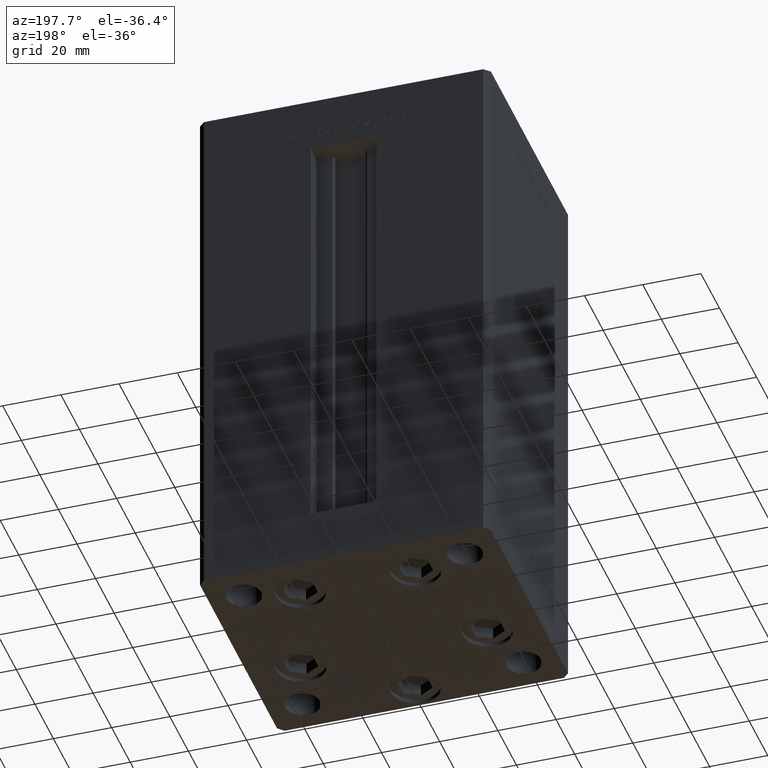
[diagram: clean part render]
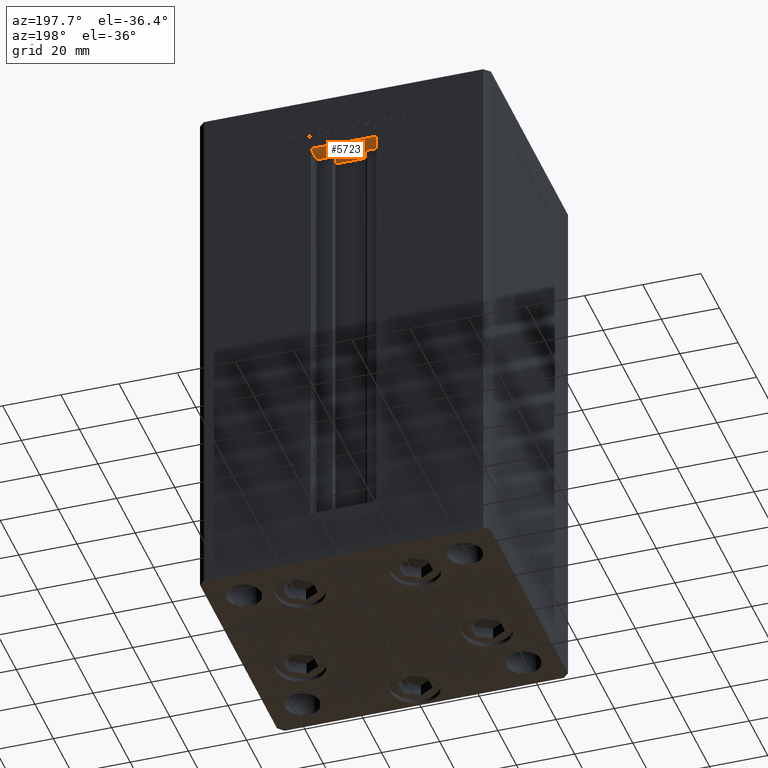
[diagram: same view with one face highlighted and labeled with its STEP entity id]
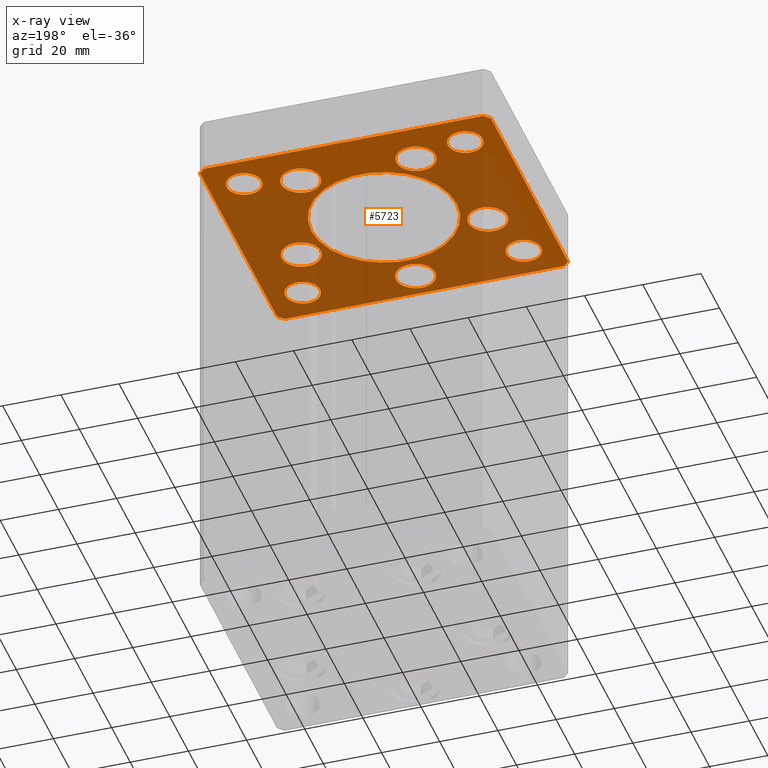
[diagram: x-ray of the same camera — body ghosted, the highlighted face saturated]
A machine part, auxiliary view. The second image highlights one B-rep face of the part: STEP entity #5723.
The next image is the same camera in x-ray: the body ghosted, the highlighted face saturated — about 66% of this face is hidden behind the body in this view.
In plain terms, the highlighted planar face has unit normal (0, 0, 1).
Its self-contained STEP definition (entity closure, byte-faithful):
#78 = DIRECTION ( 'NONE',  ( 1.000000000000000000, 0.000000000000000000, 0.000000000000000000 ) ) ;
#96 = CIRCLE ( 'NONE', #29579, 5.999999999999998224 ) ;
#256 = LINE ( 'NONE', #4733, #33995 ) ;
#383 = VERTEX_POINT ( 'NONE', #15258 ) ;
#844 = CIRCLE ( 'NONE', #36240, 6.749999999999999112 ) ;
#854 = FACE_BOUND ( 'NONE', #10773, .T. ) ;
#1069 = CIRCLE ( 'NONE', #4426, 6.749999999999999112 ) ;
#1677 = VERTEX_POINT ( 'NONE', #2013 ) ;
#2013 = CARTESIAN_POINT ( 'NONE',  ( 50.00000000000000000, 41.50000000000000711, -19.00000000000000000 ) ) ;
#2107 = EDGE_CURVE ( 'NONE', #30662, #2655, #16914, .T. ) ;
#2204 = CIRCLE ( 'NONE', #42636, 6.749999999999999112 ) ;
#2259 = EDGE_CURVE ( 'NONE', #7319, #37023, #19446, .T. ) ;
#2451 = DIRECTION ( 'NONE',  ( 0.000000000000000000, -0.000000000000000000, -1.000000000000000000 ) ) ;
#2591 = EDGE_CURVE ( 'NONE', #24892, #24194, #22020, .T. ) ;
#2606 = ORIENTED_EDGE ( 'NONE', *, *, #2591, .F. ) ;
#2616 = VECTOR ( 'NONE', #46144, 1000.000000000000000 ) ;
#2655 = VERTEX_POINT ( 'NONE', #26310 ) ;
#2840 = EDGE_CURVE ( 'NONE', #28927, #44428, #8334, .T. ) ;
#2984 = CIRCLE ( 'NONE', #28250, 6.749999999999999112 ) ;
#3645 = EDGE_LOOP ( 'NONE', ( #6474, #38647 ) ) ;
#3855 = AXIS2_PLACEMENT_3D ( 'NONE', #40510, #33645, #5426 ) ;
#4064 = DIRECTION ( 'NONE',  ( 0.000000000000000000, 1.000000000000000000, 0.000000000000000000 ) ) ;
#4212 = DIRECTION ( 'NONE',  ( -1.000000000000000000, -2.891205793294678326E-16, 0.000000000000000000 ) ) ;
#4426 = AXIS2_PLACEMENT_3D ( 'NONE', #13266, #2451, #5882 ) ;
#4561 = FACE_BOUND ( 'NONE', #45417, .T. ) ;
#4694 = DIRECTION ( 'NONE',  ( -0.000000000000000000, -0.000000000000000000, -1.000000000000000000 ) ) ;
#4733 = CARTESIAN_POINT ( 'NONE',  ( 47.99999999999999289, 43.50000000000000000, -19.00000000000000000 ) ) ;
#4824 = CARTESIAN_POINT ( 'NONE',  ( -13.07068048781375325, 27.62499999999998934, -19.00000000000000000 ) ) ;
#4992 = CARTESIAN_POINT ( 'NONE',  ( 47.99999999999999289, 43.50000000000000000, -19.00000000000000000 ) ) ;
#5426 = DIRECTION ( 'NONE',  ( 1.000000000000000000, 0.000000000000000000, 0.000000000000000000 ) ) ;
#5463 = CARTESIAN_POINT ( 'NONE',  ( 50.00000000000000000, -41.49999999999992895, -19.00000000000000000 ) ) ;
#5528 = LINE ( 'NONE', #41660, #2616 ) ;
#5723 = ADVANCED_FACE ( 'NONE', ( #25374, #48613, #28561, #21415, #37003, #24602, #4561, #36753, #24864, #40951, #854 ), #45169, .F. ) ;
#5856 = CARTESIAN_POINT ( 'NONE',  ( 25.00000000000000000, 0.000000000000000000, -19.00000000000000000 ) ) ;
#5882 = DIRECTION ( 'NONE',  ( 1.000000000000000000, 0.000000000000000000, 0.000000000000000000 ) ) ;
#6474 = ORIENTED_EDGE ( 'NONE', *, *, #39258, .F. ) ;
#6805 = AXIS2_PLACEMENT_3D ( 'NONE', #46961, #10822, #47743 ) ;
#7158 = CARTESIAN_POINT ( 'NONE',  ( -32.05550741379015989, -11.33333333333332860, -19.00000000000000000 ) ) ;
#7275 = EDGE_CURVE ( 'NONE', #25961, #27862, #96, .T. ) ;
#7319 = VERTEX_POINT ( 'NONE', #50269 ) ;
#7717 = ORIENTED_EDGE ( 'NONE', *, *, #13828, .F. ) ;
#7921 = CARTESIAN_POINT ( 'NONE',  ( 44.00000000000000000, 31.50000000000000000, -19.00000000000000000 ) ) ;
#8077 = DIRECTION ( 'NONE',  ( 0.7071067811865487940, -0.7071067811865463515, 0.000000000000000000 ) ) ;
#8334 = LINE ( 'NONE', #44213, #40541 ) ;
#8449 = DIRECTION ( 'NONE',  ( 0.000000000000000000, 0.000000000000000000, 1.000000000000000000 ) ) ;
#8545 = ORIENTED_EDGE ( 'NONE', *, *, #44936, .F. ) ;
#9023 = CARTESIAN_POINT ( 'NONE',  ( 0.000000000000000000, 0.000000000000000000, -19.00000000000000000 ) ) ;
#9340 = ORIENTED_EDGE ( 'NONE', *, *, #14526, .F. ) ;
#9848 = ORIENTED_EDGE ( 'NONE', *, *, #2107, .F. ) ;
#10169 = CARTESIAN_POINT ( 'NONE',  ( -48.00000000000000000, 43.49999999999997158, -19.00000000000000000 ) ) ;
#10211 = AXIS2_PLACEMENT_3D ( 'NONE', #16960, #52088, #12245 ) ;
#10447 = VECTOR ( 'NONE', #33289, 1000.000000000000114 ) ;
#10448 = EDGE_CURVE ( 'NONE', #1677, #13840, #50700, .T. ) ;
#10622 = VERTEX_POINT ( 'NONE', #33246 ) ;
#10683 = DIRECTION ( 'NONE',  ( 0.000000000000000000, -0.000000000000000000, -1.000000000000000000 ) ) ;
#10773 = EDGE_LOOP ( 'NONE', ( #11648, #2606 ) ) ;
#10822 = DIRECTION ( 'NONE',  ( 0.000000000000000000, -0.000000000000000000, -1.000000000000000000 ) ) ;
#10961 = EDGE_LOOP ( 'NONE', ( #33543, #50259 ) ) ;
#11169 = ORIENTED_EDGE ( 'NONE', *, *, #39381, .F. ) ;
#11228 = AXIS2_PLACEMENT_3D ( 'NONE', #14000, #50663, #25350 ) ;
#11281 = CARTESIAN_POINT ( 'NONE',  ( -44.00000000000000000, 31.50000000000000000, -19.00000000000000000 ) ) ;
#11332 = EDGE_CURVE ( 'NONE', #10622, #21359, #1069, .T. ) ;
#11648 = ORIENTED_EDGE ( 'NONE', *, *, #23475, .F. ) ;
#11717 = ORIENTED_EDGE ( 'NONE', *, *, #2259, .T. ) ;
#11728 = CARTESIAN_POINT ( 'NONE',  ( 0.000000000000000000, -34.00000000000000000, -19.00000000000000000 ) ) ;
#11749 = CARTESIAN_POINT ( 'NONE',  ( -19.82068048781374969, 27.62499999999998934, -19.00000000000000000 ) ) ;
#11928 = DIRECTION ( 'NONE',  ( 1.000000000000000000, 0.000000000000000000, 0.000000000000000000 ) ) ;
#12087 = CIRCLE ( 'NONE', #41541, 6.749999999999999112 ) ;
#12103 = CARTESIAN_POINT ( 'NONE',  ( -50.00000000000000711, 41.49999999999999289, -19.00000000000000000 ) ) ;
#12149 = DIRECTION ( 'NONE',  ( 1.000000000000000000, 0.000000000000000000, 0.000000000000000000 ) ) ;
#12245 = DIRECTION ( 'NONE',  ( -1.000000000000000000, 0.000000000000000000, 0.000000000000000000 ) ) ;
#12707 = ORIENTED_EDGE ( 'NONE', *, *, #42613, .F. ) ;
#12817 = DIRECTION ( 'NONE',  ( 1.000000000000000000, 0.000000000000000000, 0.000000000000000000 ) ) ;
#12962 = EDGE_LOOP ( 'NONE', ( #9848, #49420 ) ) ;
#12988 = EDGE_LOOP ( 'NONE', ( #31536, #45056 ) ) ;
#13194 = DIRECTION ( 'NONE',  ( 1.000000000000000000, 0.000000000000000000, 0.000000000000000000 ) ) ;
#13266 = CARTESIAN_POINT ( 'NONE',  ( 32.05550741379015989, -11.33333333333332860, -19.00000000000000000 ) ) ;
#13433 = CARTESIAN_POINT ( 'NONE',  ( -6.749999999999999112, -34.00000000000000000, -19.00000000000000000 ) ) ;
#13694 = EDGE_CURVE ( 'NONE', #49366, #36273, #21350, .T. ) ;
#13828 = EDGE_CURVE ( 'NONE', #13840, #30365, #256, .T. ) ;
#13840 = VERTEX_POINT ( 'NONE', #4992 ) ;
#13898 = AXIS2_PLACEMENT_3D ( 'NONE', #22345, #50049, #41601 ) ;
#14000 = CARTESIAN_POINT ( 'NONE',  ( 19.82068048781374969, 27.62499999999998934, -19.00000000000000000 ) ) ;
#14049 = EDGE_LOOP ( 'NONE', ( #43085, #11169, #35423, #7717, #50791, #38819, #26010, #14220 ) ) ;
#14220 = ORIENTED_EDGE ( 'NONE', *, *, #20640, .F. ) ;
#14471 = CARTESIAN_POINT ( 'NONE',  ( 32.00000000000000000, -31.50000000000000711, -19.00000000000000000 ) ) ;
#14526 = EDGE_CURVE ( 'NONE', #42193, #17980, #30616, .T. ) ;
#14739 = AXIS2_PLACEMENT_3D ( 'NONE', #32213, #24043, #20601 ) ;
#15258 = CARTESIAN_POINT ( 'NONE',  ( -26.57068048781375325, 27.62499999999998934, -19.00000000000000000 ) ) ;
#15397 = CARTESIAN_POINT ( 'NONE',  ( -32.00000000000000000, 31.50000000000000000, -19.00000000000000000 ) ) ;
#15525 = LINE ( 'NONE', #12103, #47606 ) ;
#15635 = ORIENTED_EDGE ( 'NONE', *, *, #46026, .F. ) ;
#15908 = EDGE_CURVE ( 'NONE', #17264, #28259, #16403, .T. ) ;
#15956 = DIRECTION ( 'NONE',  ( 1.000000000000000000, 0.000000000000000000, 0.000000000000000000 ) ) ;
#16403 = LINE ( 'NONE', #20629, #10447 ) ;
#16914 = CIRCLE ( 'NONE', #6805, 6.749999999999999112 ) ;
#16960 = CARTESIAN_POINT ( 'NONE',  ( -38.00000000000000000, 31.50000000000000000, -19.00000000000000000 ) ) ;
#17125 = AXIS2_PLACEMENT_3D ( 'NONE', #43074, #47547, #11928 ) ;
#17133 = ORIENTED_EDGE ( 'NONE', *, *, #21414, .T. ) ;
#17264 = VERTEX_POINT ( 'NONE', #21277 ) ;
#17283 = DIRECTION ( 'NONE',  ( 0.000000000000000000, 0.000000000000000000, 1.000000000000000000 ) ) ;
#17782 = CARTESIAN_POINT ( 'NONE',  ( 6.749999999999999112, -34.00000000000000000, -19.00000000000000000 ) ) ;
#17786 = EDGE_CURVE ( 'NONE', #30365, #30031, #19599, .T. ) ;
#17980 = VERTEX_POINT ( 'NONE', #5856 ) ;
#18373 = CARTESIAN_POINT ( 'NONE',  ( 38.80550741379015989, -11.33333333333332860, -19.00000000000000000 ) ) ;
#18909 = DIRECTION ( 'NONE',  ( -0.000000000000000000, -0.000000000000000000, -1.000000000000000000 ) ) ;
#18917 = CARTESIAN_POINT ( 'NONE',  ( -50.00000000000000711, 41.49999999999999289, -19.00000000000000000 ) ) ;
#19446 = CIRCLE ( 'NONE', #48943, 6.000000000000005329 ) ;
#19599 = LINE ( 'NONE', #35701, #22325 ) ;
#19998 = DIRECTION ( 'NONE',  ( -1.000000000000000000, 0.000000000000000000, 0.000000000000000000 ) ) ;
#20259 = CIRCLE ( 'NONE', #23649, 6.749999999999999112 ) ;
#20316 = CARTESIAN_POINT ( 'NONE',  ( -38.00000000000000711, -31.50000000000000711, -19.00000000000000000 ) ) ;
#20601 = DIRECTION ( 'NONE',  ( -1.000000000000000000, 0.000000000000000000, 0.000000000000000000 ) ) ;
#20629 = CARTESIAN_POINT ( 'NONE',  ( 48.00000000000000711, -43.49999999999992184, -19.00000000000000000 ) ) ;
#20640 = EDGE_CURVE ( 'NONE', #44428, #17264, #5528, .T. ) ;
#21249 = CARTESIAN_POINT ( 'NONE',  ( 38.00000000000000000, 31.50000000000000000, -19.00000000000000000 ) ) ;
#21277 = CARTESIAN_POINT ( 'NONE',  ( 48.00000000000000711, -43.49999999999992184, -19.00000000000000000 ) ) ;
#21350 = CIRCLE ( 'NONE', #11228, 6.749999999999999112 ) ;
#21359 = VERTEX_POINT ( 'NONE', #18373 ) ;
#21414 = EDGE_CURVE ( 'NONE', #37023, #7319, #49764, .T. ) ;
#21415 = FACE_BOUND ( 'NONE', #31620, .T. ) ;
#21959 = CARTESIAN_POINT ( 'NONE',  ( 50.00000000000000000, 41.50000000000000711, -19.00000000000000000 ) ) ;
#21972 = AXIS2_PLACEMENT_3D ( 'NONE', #51078, #31010, #47107 ) ;
#22006 = CIRCLE ( 'NONE', #10211, 5.999999999999998224 ) ;
#22020 = CIRCLE ( 'NONE', #49813, 6.000000000000005329 ) ;
#22314 = CIRCLE ( 'NONE', #40823, 6.749999999999999112 ) ;
#22325 = VECTOR ( 'NONE', #51798, 1000.000000000000000 ) ;
#22345 = CARTESIAN_POINT ( 'NONE',  ( -19.82068048781374969, 27.62499999999998934, -19.00000000000000000 ) ) ;
#22380 = CIRCLE ( 'NONE', #3855, 25.00000000000000000 ) ;
#22570 = DIRECTION ( 'NONE',  ( 1.000000000000000000, 0.000000000000000000, 0.000000000000000000 ) ) ;
#23166 = CIRCLE ( 'NONE', #34137, 5.999999999999998224 ) ;
#23475 = EDGE_CURVE ( 'NONE', #24194, #24892, #35398, .T. ) ;
#23556 = EDGE_LOOP ( 'NONE', ( #49936, #12707 ) ) ;
#23649 = AXIS2_PLACEMENT_3D ( 'NONE', #7158, #32196, #12149 ) ;
#24043 = DIRECTION ( 'NONE',  ( -0.000000000000000000, -0.000000000000000000, -1.000000000000000000 ) ) ;
#24138 = EDGE_CURVE ( 'NONE', #383, #51552, #844, .T. ) ;
#24194 = VERTEX_POINT ( 'NONE', #24935 ) ;
#24251 = CARTESIAN_POINT ( 'NONE',  ( -25.30550741379015989, -11.33333333333332860, -19.00000000000000000 ) ) ;
#24602 = FACE_BOUND ( 'NONE', #3645, .T. ) ;
#24737 = CARTESIAN_POINT ( 'NONE',  ( 38.00000000000000711, -31.50000000000000711, -19.00000000000000000 ) ) ;
#24755 = EDGE_CURVE ( 'NONE', #2655, #30662, #20259, .T. ) ;
#24864 = FACE_OUTER_BOUND ( 'NONE', #14049, .T. ) ;
#24892 = VERTEX_POINT ( 'NONE', #14471 ) ;
#24935 = CARTESIAN_POINT ( 'NONE',  ( 44.00000000000001421, -31.50000000000000711, -19.00000000000000000 ) ) ;
#25119 = DIRECTION ( 'NONE',  ( -0.000000000000000000, 0.000000000000000000, 1.000000000000000000 ) ) ;
#25139 = CARTESIAN_POINT ( 'NONE',  ( 50.00000000000000000, -41.49999999999992895, -19.00000000000000000 ) ) ;
#25327 = DIRECTION ( 'NONE',  ( 0.000000000000000000, -0.000000000000000000, -1.000000000000000000 ) ) ;
#25350 = DIRECTION ( 'NONE',  ( 1.000000000000000000, 0.000000000000000000, 0.000000000000000000 ) ) ;
#25374 = FACE_BOUND ( 'NONE', #28415, .T. ) ;
#25961 = VERTEX_POINT ( 'NONE', #45849 ) ;
#26010 = ORIENTED_EDGE ( 'NONE', *, *, #15908, .F. ) ;
#26310 = CARTESIAN_POINT ( 'NONE',  ( -38.80550741379015989, -11.33333333333332860, -19.00000000000000000 ) ) ;
#26429 = EDGE_CURVE ( 'NONE', #33421, #28208, #22006, .T. ) ;
#27862 = VERTEX_POINT ( 'NONE', #7921 ) ;
#28208 = VERTEX_POINT ( 'NONE', #11281 ) ;
#28250 = AXIS2_PLACEMENT_3D ( 'NONE', #33118, #49212, #41556 ) ;
#28259 = VERTEX_POINT ( 'NONE', #5463 ) ;
#28415 = EDGE_LOOP ( 'NONE', ( #8545, #9340 ) ) ;
#28561 = FACE_BOUND ( 'NONE', #12988, .T. ) ;
#28927 = VERTEX_POINT ( 'NONE', #45952 ) ;
#29095 = CARTESIAN_POINT ( 'NONE',  ( -25.00000000000000000, 3.061616997868383043E-15, -19.00000000000000000 ) ) ;
#29579 = AXIS2_PLACEMENT_3D ( 'NONE', #29945, #17283, #41557 ) ;
#29945 = CARTESIAN_POINT ( 'NONE',  ( 38.00000000000000000, 31.50000000000000000, -19.00000000000000000 ) ) ;
#30031 = VERTEX_POINT ( 'NONE', #18917 ) ;
#30365 = VERTEX_POINT ( 'NONE', #10169 ) ;
#30448 = CARTESIAN_POINT ( 'NONE',  ( 26.57068048781374969, 27.62499999999998934, -19.00000000000000000 ) ) ;
#30616 = CIRCLE ( 'NONE', #17125, 25.00000000000000000 ) ;
#30662 = VERTEX_POINT ( 'NONE', #24251 ) ;
#30754 = CIRCLE ( 'NONE', #14739, 5.999999999999998224 ) ;
#31010 = DIRECTION ( 'NONE',  ( 0.000000000000000000, 0.000000000000000000, 1.000000000000000000 ) ) ;
#31289 = CARTESIAN_POINT ( 'NONE',  ( 38.00000000000000711, -31.50000000000000711, -19.00000000000000000 ) ) ;
#31536 = ORIENTED_EDGE ( 'NONE', *, *, #37594, .F. ) ;
#31538 = VECTOR ( 'NONE', #4064, 1000.000000000000000 ) ;
#31620 = EDGE_LOOP ( 'NONE', ( #15635, #49861 ) ) ;
#32114 = VERTEX_POINT ( 'NONE', #13433 ) ;
#32196 = DIRECTION ( 'NONE',  ( 0.000000000000000000, -0.000000000000000000, -1.000000000000000000 ) ) ;
#32213 = CARTESIAN_POINT ( 'NONE',  ( -38.00000000000000000, 31.50000000000000000, -19.00000000000000000 ) ) ;
#33118 = CARTESIAN_POINT ( 'NONE',  ( 19.82068048781374969, 27.62499999999998934, -19.00000000000000000 ) ) ;
#33124 = EDGE_CURVE ( 'NONE', #32114, #34689, #12087, .T. ) ;
#33233 = DIRECTION ( 'NONE',  ( 1.000000000000000000, 0.000000000000000000, 0.000000000000000000 ) ) ;
#33246 = CARTESIAN_POINT ( 'NONE',  ( 25.30550741379015989, -11.33333333333332860, -19.00000000000000000 ) ) ;
#33289 = DIRECTION ( 'NONE',  ( 0.7071067811865474617, 0.7071067811865474617, 0.000000000000000000 ) ) ;
#33421 = VERTEX_POINT ( 'NONE', #15397 ) ;
#33543 = ORIENTED_EDGE ( 'NONE', *, *, #44935, .F. ) ;
#33645 = DIRECTION ( 'NONE',  ( 0.000000000000000000, -0.000000000000000000, -1.000000000000000000 ) ) ;
#33995 = VECTOR ( 'NONE', #4212, 1000.000000000000000 ) ;
#34137 = AXIS2_PLACEMENT_3D ( 'NONE', #21249, #41834, #12817 ) ;
#34187 = CARTESIAN_POINT ( 'NONE',  ( 13.07068048781375147, 27.62499999999998934, -19.00000000000000000 ) ) ;
#34189 = CARTESIAN_POINT ( 'NONE',  ( 32.05550741379015989, -11.33333333333332860, -19.00000000000000000 ) ) ;
#34689 = VERTEX_POINT ( 'NONE', #17782 ) ;
#35398 = CIRCLE ( 'NONE', #38755, 6.000000000000005329 ) ;
#35423 = ORIENTED_EDGE ( 'NONE', *, *, #17786, .F. ) ;
#35701 = CARTESIAN_POINT ( 'NONE',  ( -48.00000000000000000, 43.49999999999997158, -19.00000000000000000 ) ) ;
#35856 = DIRECTION ( 'NONE',  ( 8.360113137237620037E-17, -1.000000000000000000, 0.000000000000000000 ) ) ;
#36240 = AXIS2_PLACEMENT_3D ( 'NONE', #11749, #51868, #15956 ) ;
#36273 = VERTEX_POINT ( 'NONE', #30448 ) ;
#36753 = FACE_BOUND ( 'NONE', #45663, .T. ) ;
#37003 = FACE_BOUND ( 'NONE', #10961, .T. ) ;
#37023 = VERTEX_POINT ( 'NONE', #43846 ) ;
#37261 = ORIENTED_EDGE ( 'NONE', *, *, #7275, .T. ) ;
#37594 = EDGE_CURVE ( 'NONE', #34689, #32114, #22314, .T. ) ;
#38647 = ORIENTED_EDGE ( 'NONE', *, *, #24138, .F. ) ;
#38755 = AXIS2_PLACEMENT_3D ( 'NONE', #31289, #18909, #47393 ) ;
#38819 = ORIENTED_EDGE ( 'NONE', *, *, #42210, .F. ) ;
#38855 = CARTESIAN_POINT ( 'NONE',  ( -48.00000000000000711, -43.50000000000002842, -19.00000000000000000 ) ) ;
#39258 = EDGE_CURVE ( 'NONE', #51552, #383, #42565, .T. ) ;
#39381 = EDGE_CURVE ( 'NONE', #30031, #28927, #15525, .T. ) ;
#40189 = LINE ( 'NONE', #25139, #31538 ) ;
#40510 = CARTESIAN_POINT ( 'NONE',  ( 0.000000000000000000, 0.000000000000000000, -19.00000000000000000 ) ) ;
#40541 = VECTOR ( 'NONE', #8077, 1000.000000000000000 ) ;
#40823 = AXIS2_PLACEMENT_3D ( 'NONE', #11728, #51847, #43139 ) ;
#40951 = FACE_BOUND ( 'NONE', #23556, .T. ) ;
#41541 = AXIS2_PLACEMENT_3D ( 'NONE', #49870, #25327, #13194 ) ;
#41556 = DIRECTION ( 'NONE',  ( 1.000000000000000000, 0.000000000000000000, 0.000000000000000000 ) ) ;
#41557 = DIRECTION ( 'NONE',  ( 1.000000000000000000, 0.000000000000000000, 0.000000000000000000 ) ) ;
#41601 = DIRECTION ( 'NONE',  ( 1.000000000000000000, 0.000000000000000000, 0.000000000000000000 ) ) ;
#41660 = CARTESIAN_POINT ( 'NONE',  ( -48.00000000000000711, -43.50000000000002842, -19.00000000000000000 ) ) ;
#41834 = DIRECTION ( 'NONE',  ( 0.000000000000000000, 0.000000000000000000, 1.000000000000000000 ) ) ;
#42193 = VERTEX_POINT ( 'NONE', #29095 ) ;
#42210 = EDGE_CURVE ( 'NONE', #28259, #1677, #40189, .T. ) ;
#42565 = CIRCLE ( 'NONE', #13898, 6.749999999999999112 ) ;
#42613 = EDGE_CURVE ( 'NONE', #28208, #33421, #30754, .T. ) ;
#42636 = AXIS2_PLACEMENT_3D ( 'NONE', #34189, #10683, #22570 ) ;
#43074 = CARTESIAN_POINT ( 'NONE',  ( 0.000000000000000000, 0.000000000000000000, -19.00000000000000000 ) ) ;
#43085 = ORIENTED_EDGE ( 'NONE', *, *, #2840, .F. ) ;
#43139 = DIRECTION ( 'NONE',  ( 1.000000000000000000, 0.000000000000000000, 0.000000000000000000 ) ) ;
#43172 = ORIENTED_EDGE ( 'NONE', *, *, #43335, .T. ) ;
#43335 = EDGE_CURVE ( 'NONE', #27862, #25961, #23166, .T. ) ;
#43846 = CARTESIAN_POINT ( 'NONE',  ( -44.00000000000001421, -31.50000000000000711, -19.00000000000000000 ) ) ;
#44213 = CARTESIAN_POINT ( 'NONE',  ( -50.00000000000000000, -41.50000000000004263, -19.00000000000000000 ) ) ;
#44428 = VERTEX_POINT ( 'NONE', #38855 ) ;
#44716 = AXIS2_PLACEMENT_3D ( 'NONE', #9023, #25119, #78 ) ;
#44831 = VECTOR ( 'NONE', #50447, 999.9999999999998863 ) ;
#44935 = EDGE_CURVE ( 'NONE', #36273, #49366, #2984, .T. ) ;
#44936 = EDGE_CURVE ( 'NONE', #17980, #42193, #22380, .T. ) ;
#45056 = ORIENTED_EDGE ( 'NONE', *, *, #33124, .F. ) ;
#45169 = PLANE ( 'NONE',  #44716 ) ;
#45417 = EDGE_LOOP ( 'NONE', ( #43172, #37261 ) ) ;
#45663 = EDGE_LOOP ( 'NONE', ( #11717, #17133 ) ) ;
#45849 = CARTESIAN_POINT ( 'NONE',  ( 32.00000000000000000, 31.50000000000000000, -19.00000000000000000 ) ) ;
#45952 = CARTESIAN_POINT ( 'NONE',  ( -50.00000000000000000, -41.50000000000004263, -19.00000000000000000 ) ) ;
#46026 = EDGE_CURVE ( 'NONE', #21359, #10622, #2204, .T. ) ;
#46144 = DIRECTION ( 'NONE',  ( 1.000000000000000000, 1.156482317317871331E-15, 0.000000000000000000 ) ) ;
#46961 = CARTESIAN_POINT ( 'NONE',  ( -32.05550741379015989, -11.33333333333332860, -19.00000000000000000 ) ) ;
#47107 = DIRECTION ( 'NONE',  ( 1.000000000000000000, 0.000000000000000000, 0.000000000000000000 ) ) ;
#47393 = DIRECTION ( 'NONE',  ( -1.000000000000000000, 0.000000000000000000, 0.000000000000000000 ) ) ;
#47547 = DIRECTION ( 'NONE',  ( 0.000000000000000000, -0.000000000000000000, -1.000000000000000000 ) ) ;
#47606 = VECTOR ( 'NONE', #35856, 1000.000000000000000 ) ;
#47743 = DIRECTION ( 'NONE',  ( 1.000000000000000000, 0.000000000000000000, 0.000000000000000000 ) ) ;
#48613 = FACE_BOUND ( 'NONE', #12962, .T. ) ;
#48943 = AXIS2_PLACEMENT_3D ( 'NONE', #20316, #8449, #33233 ) ;
#49212 = DIRECTION ( 'NONE',  ( 0.000000000000000000, -0.000000000000000000, -1.000000000000000000 ) ) ;
#49366 = VERTEX_POINT ( 'NONE', #34187 ) ;
#49420 = ORIENTED_EDGE ( 'NONE', *, *, #24755, .F. ) ;
#49764 = CIRCLE ( 'NONE', #21972, 6.000000000000005329 ) ;
#49813 = AXIS2_PLACEMENT_3D ( 'NONE', #24737, #4694, #19998 ) ;
#49861 = ORIENTED_EDGE ( 'NONE', *, *, #11332, .F. ) ;
#49870 = CARTESIAN_POINT ( 'NONE',  ( 0.000000000000000000, -34.00000000000000000, -19.00000000000000000 ) ) ;
#49936 = ORIENTED_EDGE ( 'NONE', *, *, #26429, .F. ) ;
#50049 = DIRECTION ( 'NONE',  ( 0.000000000000000000, -0.000000000000000000, -1.000000000000000000 ) ) ;
#50259 = ORIENTED_EDGE ( 'NONE', *, *, #13694, .F. ) ;
#50269 = CARTESIAN_POINT ( 'NONE',  ( -32.00000000000000000, -31.50000000000000711, -19.00000000000000000 ) ) ;
#50447 = DIRECTION ( 'NONE',  ( -0.7071067811865512365, 0.7071067811865439090, 0.000000000000000000 ) ) ;
#50663 = DIRECTION ( 'NONE',  ( 0.000000000000000000, -0.000000000000000000, -1.000000000000000000 ) ) ;
#50700 = LINE ( 'NONE', #21959, #44831 ) ;
#50791 = ORIENTED_EDGE ( 'NONE', *, *, #10448, .F. ) ;
#51078 = CARTESIAN_POINT ( 'NONE',  ( -38.00000000000000711, -31.50000000000000711, -19.00000000000000000 ) ) ;
#51552 = VERTEX_POINT ( 'NONE', #4824 ) ;
#51798 = DIRECTION ( 'NONE',  ( -0.7071067811865536790, -0.7071067811865414665, 0.000000000000000000 ) ) ;
#51847 = DIRECTION ( 'NONE',  ( 0.000000000000000000, -0.000000000000000000, -1.000000000000000000 ) ) ;
#51868 = DIRECTION ( 'NONE',  ( 0.000000000000000000, -0.000000000000000000, -1.000000000000000000 ) ) ;
#52088 = DIRECTION ( 'NONE',  ( -0.000000000000000000, -0.000000000000000000, -1.000000000000000000 ) ) ;